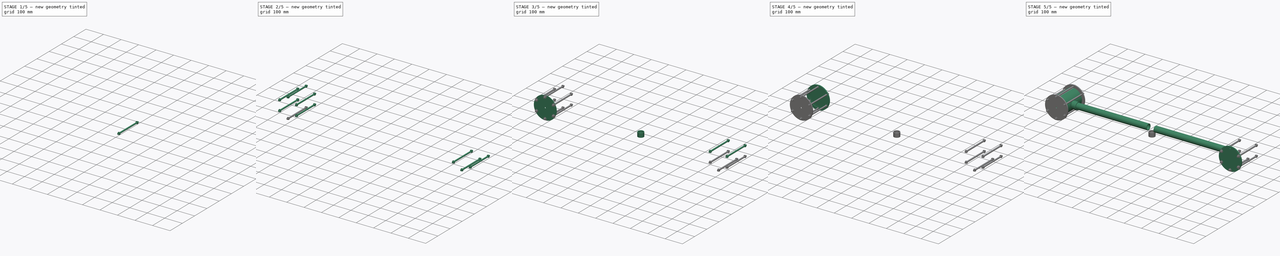
[diagram: build sequence overview — one tinted view per stage of 5, left to right]
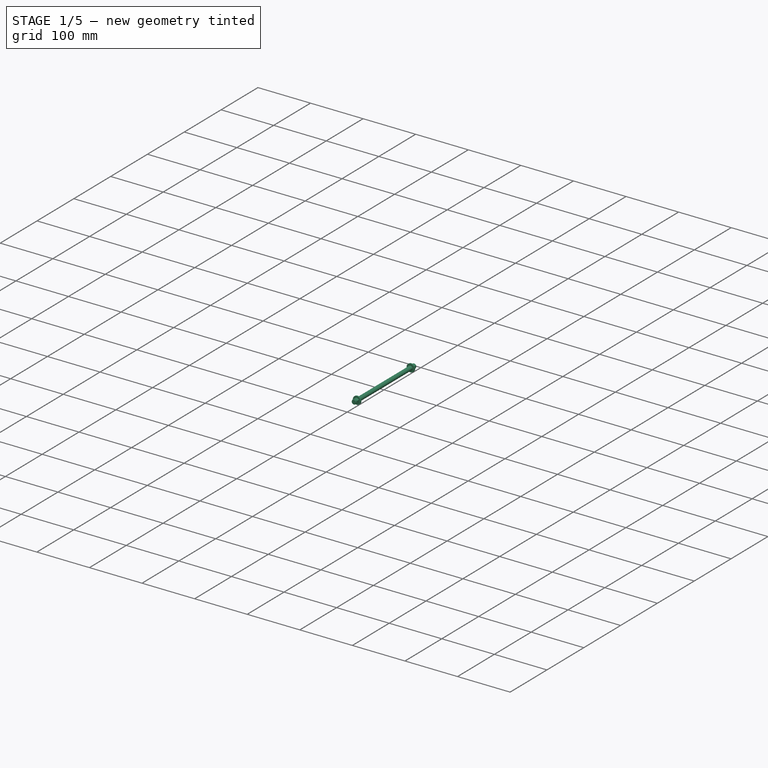
[diagram: stage 1 of 5 — iso view after this stage's code; geometry added in this stage tinted green]
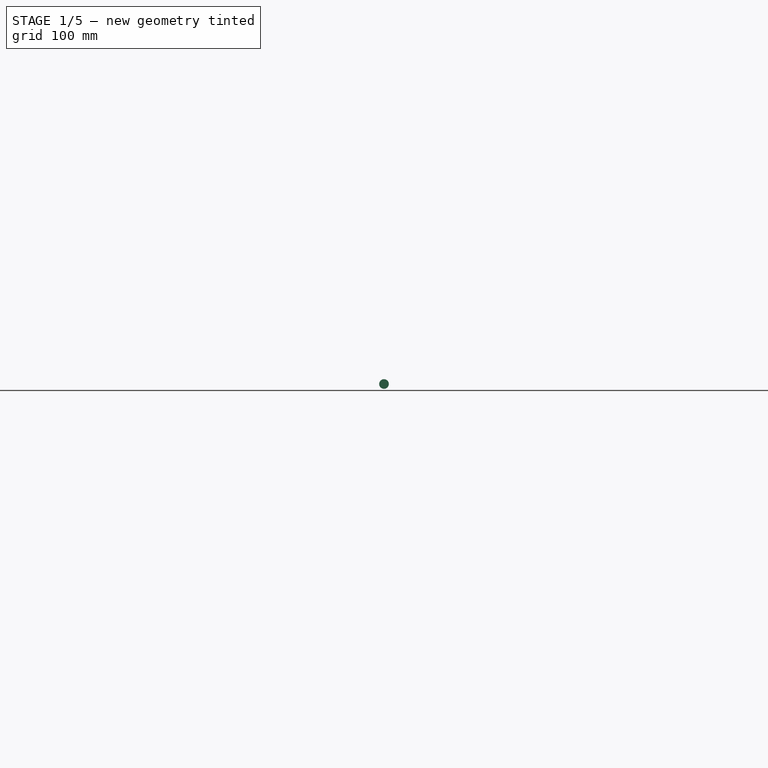
[diagram: stage 1 of 5 — front view after this stage's code; geometry added in this stage tinted green]
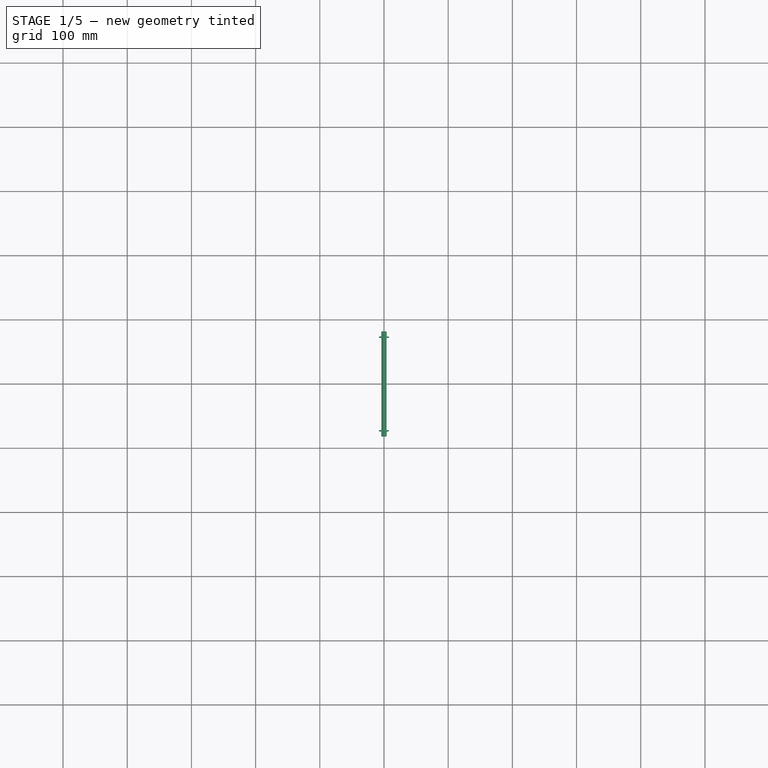
[diagram: stage 1 of 5 — top view after this stage's code; geometry added in this stage tinted green]
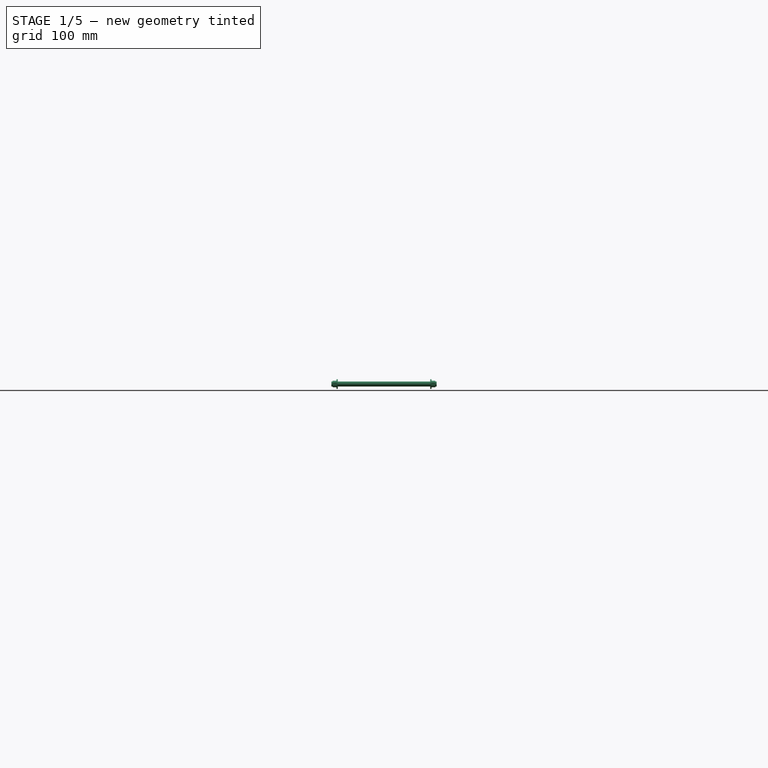
[diagram: stage 1 of 5 — right view after this stage's code; geometry added in this stage tinted green]
FCSTD DOCUMENT  (FreeCAD 0.15R4671 (Git))
Label: StereoEyes
License: All rights reserved
LicenseURL: http://en.wikipedia.org/wiki/All_rights_reserved
objects: Part::FeaturePython×22, Sketcher::SketchObject×18, PartDesign::Pad×11, PartDesign::Pocket×7, Part::Feature×4, App::FeaturePython×1
note: 80 computed .brp shape members not serialized (recipe doc carries the construction recipe); baked Part::Feature solids carry a one-line shape summary decoded from their .brp

FEATURE [Sketcher::SketchObject] Sketch013
  Placement = pos=(500,82,56) rot=(-1,0,0;4.71239rad)
  sketch-geometry (1):
    g0: Circle CenterX=0 CenterY=0 CenterZ=0 NormalX=0 NormalY=0 NormalZ=1 Radius=3.96875
  constraints (2):
    c: Coincident(g0,g-1)
    c: Radius(g0) = 3.96875
FEATURE [PartDesign::Pad] Pad009  label="thread rod 1"
  Length = 164
  Length2 = 100
  Placement = pos=(500,82,56) rot=(-1,0,0;4.71239rad)
  Sketch = -> Sketch013
  Type = 0
FEATURE [Sketcher::SketchObject] Sketch014
  Placement = pos=(500,82,56) rot=(-1,0,0;1.5708rad)
  Support = -> Pad009 [Face2]
  sketch-geometry (1):
    g0: Circle CenterX=0 CenterY=0 CenterZ=0 NormalX=0 NormalY=0 NormalZ=1 Radius=7.5
  constraints (2):
    c: Coincident(g0,g-1)
    c: Radius(g0) = 7.5
FEATURE [PartDesign::Pad] Pad010  label="thread rod 2"
  Length = 10
  Length2 = 100
  Placement = pos=(500,82,56) rot=(-1,0,0;4.71239rad)
  Reversed = true
  Sketch = -> Sketch014
  Type = 0
FEATURE [Sketcher::SketchObject] Sketch015
  ExternalGeometry = -> [Pad010]
  Placement = pos=(500,82,56) rot=(-1,0,0;1.5708rad)
  Support = -> Pad010 [Face5]
  sketch-geometry (8):
    g0: Circle CenterX=0 CenterY=0 CenterZ=0 NormalX=0 NormalY=0 NormalZ=1 Radius=7.5
    g1: LineSegment StartX=0 StartY=5 StartZ=0 EndX=-4.33013 EndY=2.5 EndZ=0
    g2: LineSegment StartX=-4.33013 StartY=2.5 StartZ=0 EndX=-4.33013 EndY=-2.5 EndZ=0
    g3: LineSegment StartX=-4.33013 StartY=-2.5 StartZ=0 EndX=0 EndY=-5 EndZ=0
    g4: LineSegment StartX=0 StartY=-5 StartZ=0 EndX=4.33013 EndY=-2.5 EndZ=0
    g5: LineSegment StartX=4.33013 StartY=-2.5 StartZ=0 EndX=4.33013 EndY=2.5 EndZ=0
    g6: LineSegment StartX=4.33013 StartY=2.5 StartZ=0 EndX=0 EndY=5 EndZ=0
    g7: Circle [constr] CenterX=0 CenterY=0 CenterZ=0 NormalX=0 NormalY=0 NormalZ=1 Radius=5
  constraints (19):
    c: Coincident(g0,g-1)
    c: Coincident(g1,g2)
    c: Coincident(g2,g3)
    c: Coincident(g3,g4)
    c: Coincident(g4,g5)
    c: Coincident(g5,g6)
    c: Coincident(g6,g1)
    c: Equal(g1, g2-g6) x5
    c: PointOnObject(g1,g7)
    c: PointOnObject(g2,g7)
    c: PointOnObject(g3,g7)
    c: PointOnObject(g4,g7)
    c: PointOnObject(g5,g7)
    c: PointOnObject(g6,g7)
    c: Coincident(g4,g-1)
    c: PointOnObject(g1,g-2)
    c: Coincident(g7,g-1)
    c: Radius(g7) = 5
    c: Equal(g0,g-3)
FEATURE [PartDesign::Pocket] Pocket003  label="thread rod 3"
  Length = 8
  Placement = pos=(500,82,56) rot=(-1,0,0;4.71239rad)
  Sketch = -> Sketch015
  Type = 0
FEATURE [Sketcher::SketchObject] Sketch016
  ExternalGeometry = -> [Pocket003]
  Placement = pos=(500,82,56) rot=(-1,0,0;1.5708rad)
  Support = -> Pocket003 [Face12]
  sketch-geometry (2):
    g0: Circle CenterX=0 CenterY=0 CenterZ=0 NormalX=0 NormalY=0 NormalZ=1 Radius=3.96875
    g1: Circle CenterX=0 CenterY=0 CenterZ=0 NormalX=0 NormalY=0 NormalZ=1 Radius=7.5
  constraints (1):
    c: Coincident(g0,g-1)
FEATURE [PartDesign::Pocket] Pocket004  label="thread rod 4"
  Length = 2
  Placement = pos=(500,82,56) rot=(-1,0,0;4.71239rad)
  Sketch = -> Sketch016
  Type = 0
FEATURE [Sketcher::SketchObject] Sketch017
  Placement = pos=(500,-82,56) rot=(1,0,0;1.5708rad)
  Support = -> Pocket004 [Face1]
  sketch-geometry (1):
    g0: Circle CenterX=0 CenterY=0 CenterZ=0 NormalX=0 NormalY=0 NormalZ=1 Radius=7.5
  constraints (2):
    c: Coincident(g0,g-1)
    c: Radius(g0) = 7.5
FEATURE [PartDesign::Pad] Pad011  label="thread rod 5"
  Length = 10
  Length2 = 100
  Placement = pos=(500,82,56) rot=(-1,0,0;4.71239rad)
  Reversed = true
  Sketch = -> Sketch017
  Type = 0
FEATURE [Sketcher::SketchObject] Sketch018
  ExternalGeometry = -> [Pad011]
  Placement = pos=(500,-82,56) rot=(1,0,0;1.5708rad)
  Support = -> Pad011 [Face14]
  sketch-geometry (8):
    g0: Circle CenterX=0 CenterY=0 CenterZ=0 NormalX=0 NormalY=0 NormalZ=1 Radius=7.5
    g1: LineSegment StartX=0 StartY=5 StartZ=0 EndX=-4.33013 EndY=2.5 EndZ=0
    g2: LineSegment StartX=-4.33013 StartY=2.5 StartZ=0 EndX=-4.33013 EndY=-2.5 EndZ=0
    g3: LineSegment StartX=-4.33013 StartY=-2.5 StartZ=0 EndX=0 EndY=-5 EndZ=0
    g4: LineSegment StartX=0 StartY=-5 StartZ=0 EndX=4.33013 EndY=-2.5 EndZ=0
    g5: LineSegment StartX=4.33013 StartY=-2.5 StartZ=0 EndX=4.33013 EndY=2.5 EndZ=0
    g6: LineSegment StartX=4.33013 StartY=2.5 StartZ=0 EndX=0 EndY=5 EndZ=0
    g7: Circle [constr] CenterX=0 CenterY=0 CenterZ=0 NormalX=0 NormalY=0 NormalZ=1 Radius=5
  constraints (19):
    c: Coincident(g0,g-1)
    c: Coincident(g1,g2)
    c: Coincident(g2,g3)
    c: Coincident(g3,g4)
    c: Coincident(g4,g5)
    c: Coincident(g5,g6)
    c: Coincident(g6,g1)
    c: Equal(g1, g2-g6) x5
    c: PointOnObject(g1,g7)
    c: PointOnObject(g2,g7)
    c: PointOnObject(g3,g7)
    c: PointOnObject(g4,g7)
    c: PointOnObject(g5,g7)
    c: PointOnObject(g6,g7)
    c: Coincident(g4,g-1)
    c: Coincident(g0,g7)
    c: PointOnObject(g1,g-2)
    c: Equal(g0,g-3)
    c: Radius(g7) = 5
FEATURE [PartDesign::Pocket] Pocket005  label="thread rod 6"
  Length = 8
  Placement = pos=(500,82,56) rot=(-1,0,0;4.71239rad)
  Sketch = -> Sketch018
  Type = 0
FEATURE [Sketcher::SketchObject] Sketch019
  ExternalGeometry = -> [Pocket005]
  Placement = pos=(500,-82,56) rot=(1,0,0;1.5708rad)
  Support = -> Pocket005 [Face24]
  sketch-geometry (2):
    g0: Circle CenterX=0 CenterY=0 CenterZ=0 NormalX=0 NormalY=0 NormalZ=1 Radius=7.5
    g1: Circle CenterX=0 CenterY=0 CenterZ=0 NormalX=0 NormalY=0 NormalZ=1 Radius=3.96875
  constraints (4):
    c: Coincident(g0,g1)
    c: Coincident(g0,g-4)
    c: Equal(g1,g-3)
    c: Equal(g0,g-4)
FEATURE [PartDesign::Pocket] Pocket006  label="TL thread rod 7 right 1"
  Length = 2
  Placement = pos=(500,82,56) rot=(-1,0,0;4.71239rad)
  Sketch = -> Sketch019
  Type = 0
FEATURE [Part::FeaturePython] Clone021  label="TL thread rod 7 left 6"  # Draft clone (typed FeaturePython)
  Objects = -> [Pocket006]
  Placement = pos=(-500,82,-56) rot=(1,0,0;1.5708rad)
  Scale = (1,1,1)
FEATURE [App::FeaturePython] Dimension  # Draft dimension (typed FeaturePython)
  Dimline = (358,0,152)
  Direction = (0,0,0)
  Distance = 992.062
  End = (496.031,0,56)
  Normal = (0,-1,0)
  Start = (-496.031,0,56)
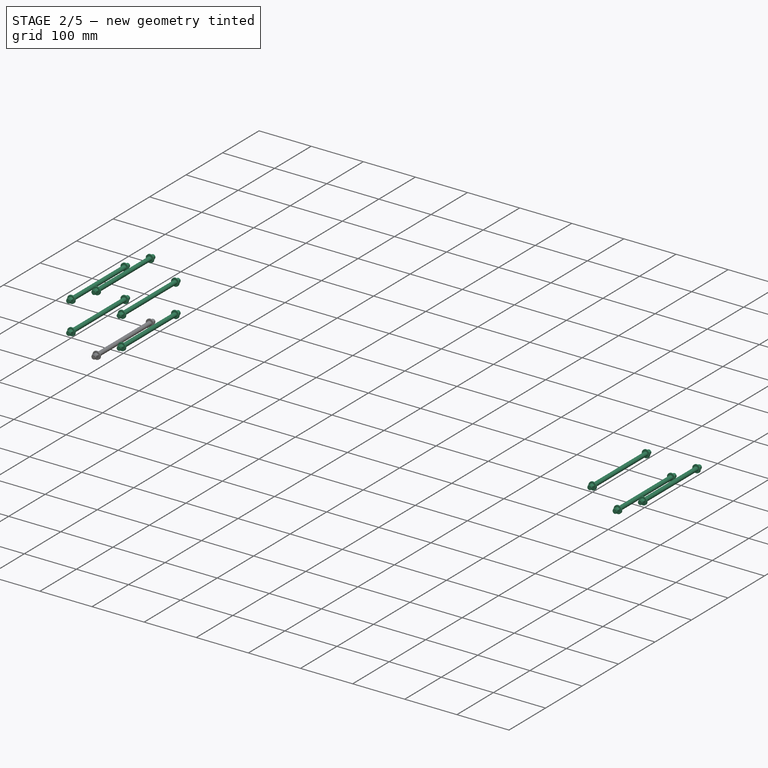
[diagram: stage 2 of 5 — iso view after this stage's code; geometry added in this stage tinted green]
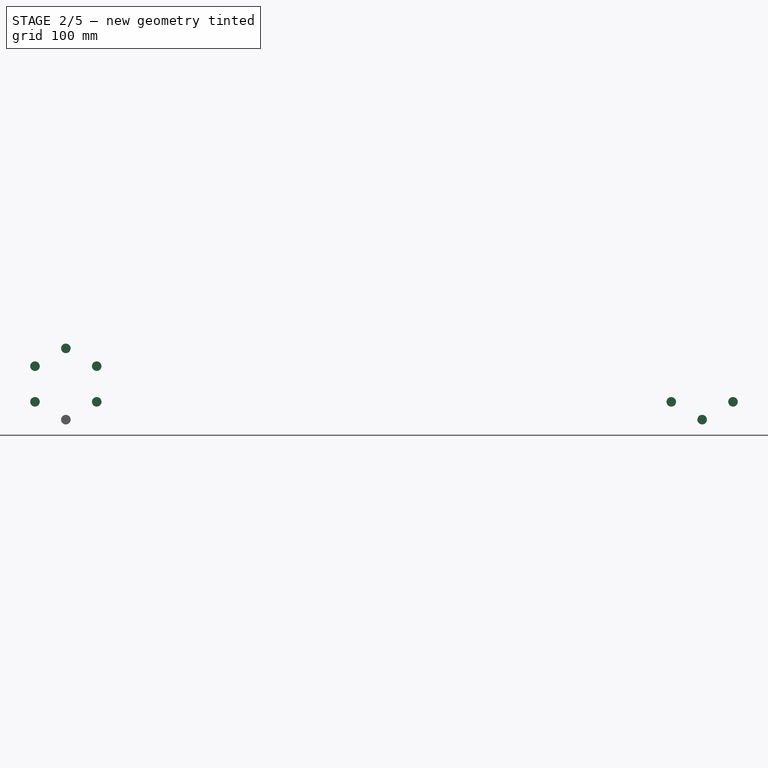
[diagram: stage 2 of 5 — front view after this stage's code; geometry added in this stage tinted green]
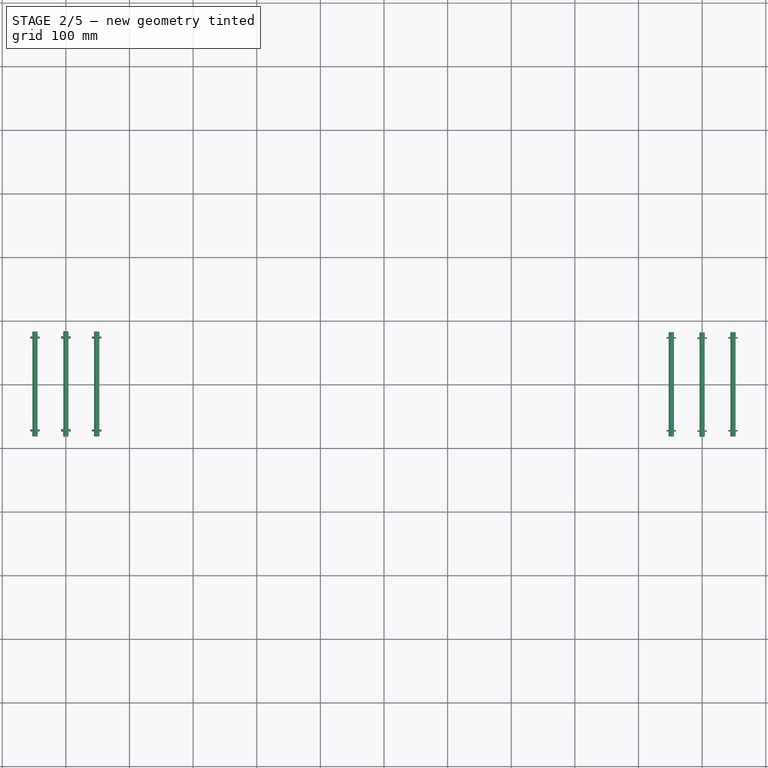
[diagram: stage 2 of 5 — top view after this stage's code; geometry added in this stage tinted green]
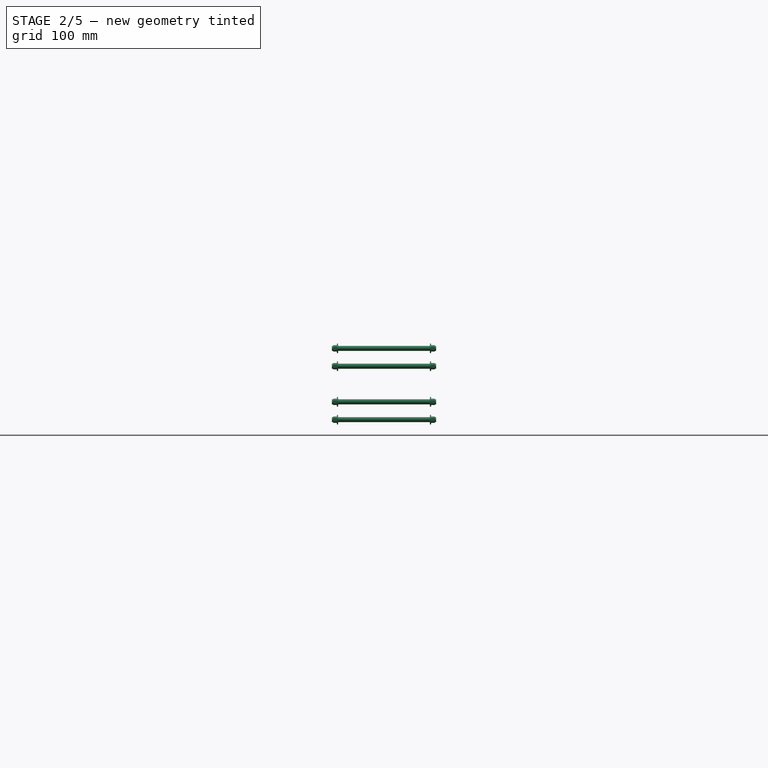
[diagram: stage 2 of 5 — right view after this stage's code; geometry added in this stage tinted green]
FEATURE [Part::FeaturePython] Clone013  label="TL thread rod 7 right 4"  # Draft clone (typed FeaturePython)
  Objects = -> [Pocket006]
  Placement = pos=(548.5,82,-28) rot=(1,0,0;1.5708rad)
  Scale = (1,1,1)
FEATURE [Part::FeaturePython] Clone014  label="TL thread rod 7 right 5"  # Draft clone (typed FeaturePython)
  Objects = -> [Pocket006]
  Placement = pos=(451.5,82,-28) rot=(1,0,0;1.5708rad)
  Scale = (1,1,1)
FEATURE [Part::FeaturePython] Clone015  label="TL thread rod 7 right 6"  # Draft clone (typed FeaturePython)
  Objects = -> [Pocket006]
  Placement = pos=(500,82,-56) rot=(1,0,0;1.5708rad)
  Scale = (1,1,1)
FEATURE [Part::FeaturePython] Clone016  label="TL thread rod 7 left 1"  # Draft clone (typed FeaturePython)
  Objects = -> [Pocket006]
  Placement = pos=(-500,82,56) rot=(1,0,0;1.5708rad)
  Scale = (1,1,1)
FEATURE [Part::FeaturePython] Clone017  label="TL thread rod 7 left 2"  # Draft clone (typed FeaturePython)
  Objects = -> [Pocket006]
  Placement = pos=(-548.5,82,28) rot=(1,0,0;1.5708rad)
  Scale = (1,1,1)
FEATURE [Part::FeaturePython] Clone018  label="TL thread rod 7 left 3"  # Draft clone (typed FeaturePython)
  Objects = -> [Pocket006]
  Placement = pos=(-451.5,82,28) rot=(1,0,0;1.5708rad)
  Scale = (1,1,1)
FEATURE [Part::FeaturePython] Clone019  label="TL thread rod 7 left 4"  # Draft clone (typed FeaturePython)
  Objects = -> [Pocket006]
  Placement = pos=(-548.5,82,-28) rot=(1,0,0;1.5708rad)
  Scale = (1,1,1)
FEATURE [Part::FeaturePython] Clone020  label="TL thread rod 7 left 5"  # Draft clone (typed FeaturePython)
  Objects = -> [Pocket006]
  Placement = pos=(-451.5,82,-28) rot=(1,0,0;1.5708rad)
  Scale = (1,1,1)
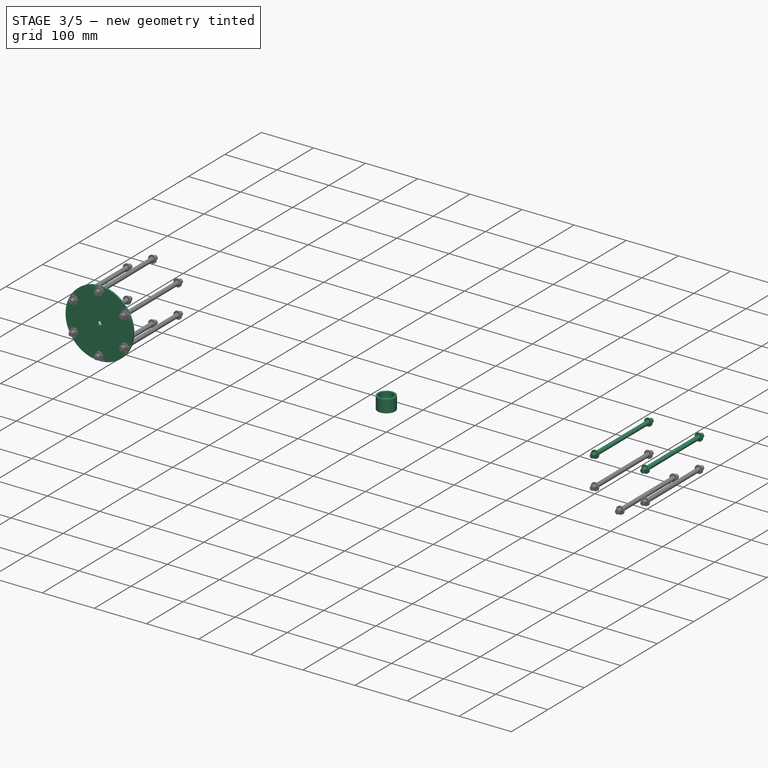
[diagram: stage 3 of 5 — iso view after this stage's code; geometry added in this stage tinted green]
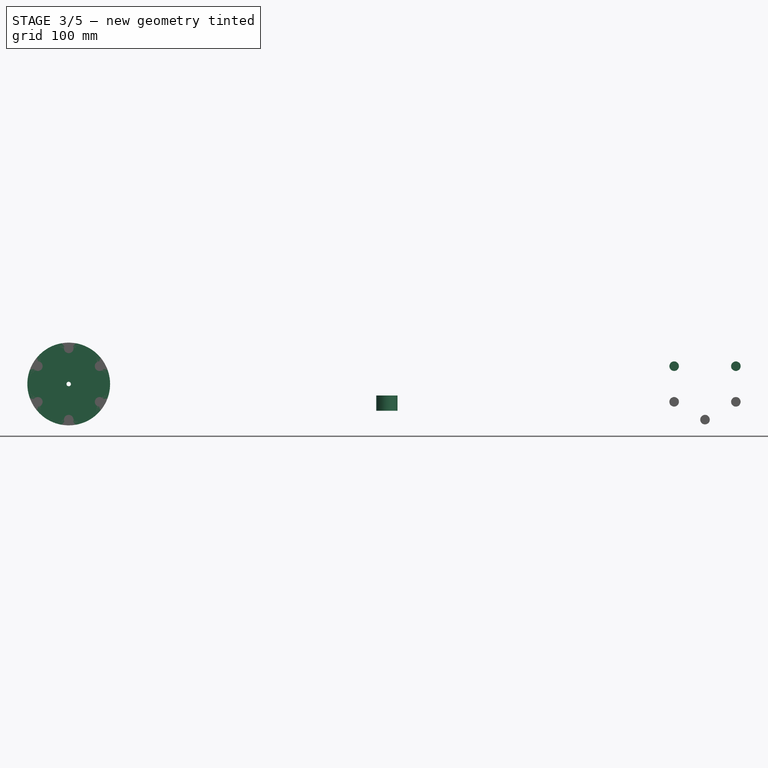
[diagram: stage 3 of 5 — front view after this stage's code; geometry added in this stage tinted green]
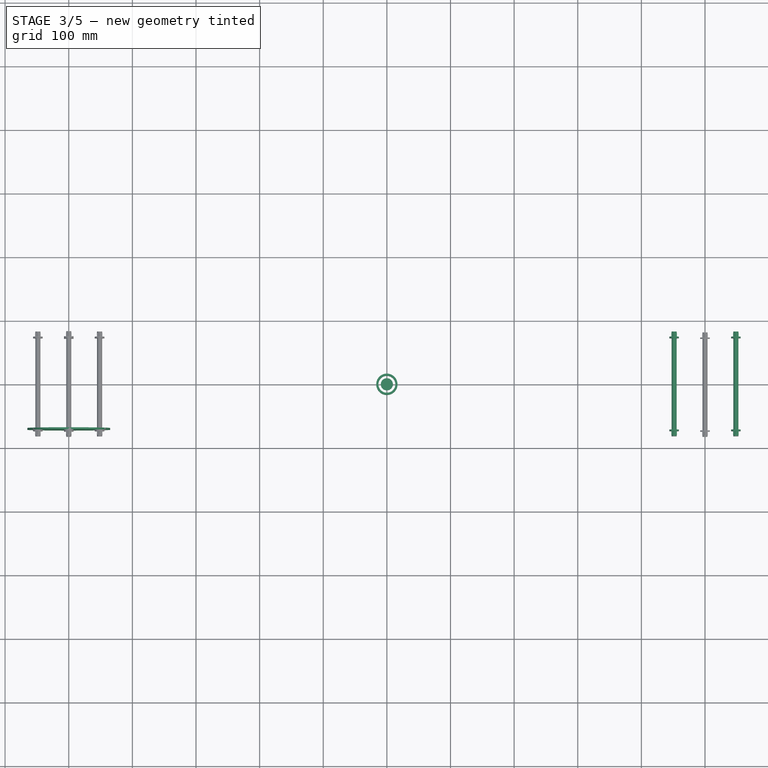
[diagram: stage 3 of 5 — top view after this stage's code; geometry added in this stage tinted green]
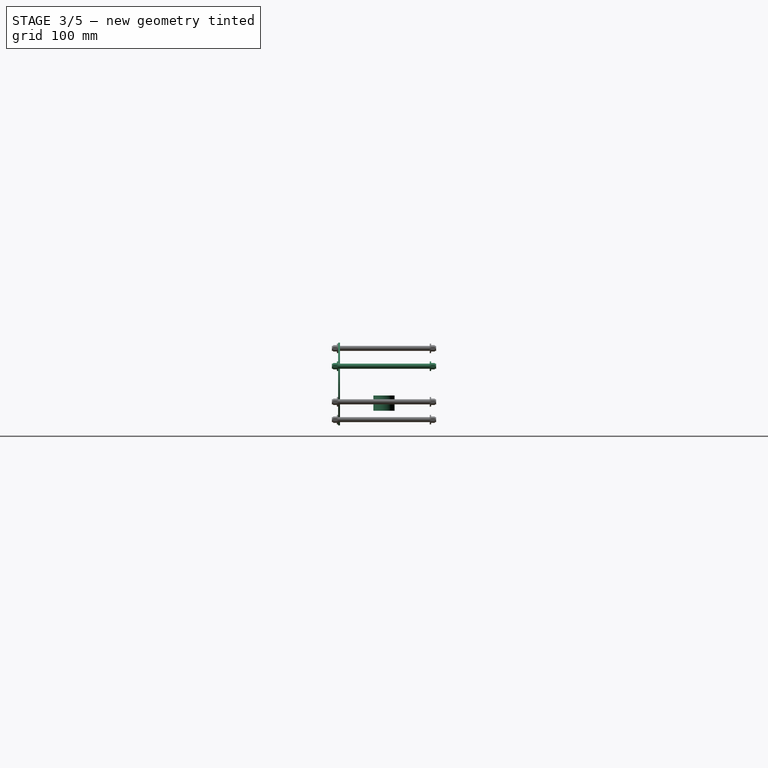
[diagram: stage 3 of 5 — right view after this stage's code; geometry added in this stage tinted green]
FEATURE [Part::Feature] Part__Feature002  label="TL 1in PVB T joint center"
  Placement = pos=(0,0,0) rot=(-1,0,0;1.5708rad)
  shape: bbox 84.99 x 40.67 x 62.83 mm, 22 faces (baked)
FEATURE [Sketcher::SketchObject] Sketch005
  Placement = pos=(500,72.072,0) rot=(1,0,0;1.5708rad)
  sketch-geometry (1):
    g0: Circle CenterX=0 CenterY=0 CenterZ=0 NormalX=0 NormalY=0 NormalZ=1 Radius=65
  constraints (2):
    c: Coincident(g0,g-1)
    c: Radius(g0) = 65
FEATURE [PartDesign::Pad] Pad004  label="acrylic window"
  Length = 3
  Length2 = 100
  Placement = pos=(500,72.072,0) rot=(1,0,0;1.5708rad)
  Sketch = -> Sketch005
  Type = 0
FEATURE [Sketcher::SketchObject] Sketch006
  Placement = pos=(500,69.072,0) rot=(1,0,0;1.5708rad)
  Support = -> Pad004 [Face3]
  sketch-geometry (13):
    g0: LineSegment [constr] StartX=-48.4974 StartY=28 StartZ=0 EndX=-48.4974 EndY=-28 EndZ=0
    g1: LineSegment [constr] StartX=-48.4974 StartY=-28 StartZ=0 EndX=0 EndY=-56 EndZ=0
    g2: LineSegment [constr] StartX=0 StartY=-56 StartZ=0 EndX=48.4974 EndY=-28 EndZ=0
    g3: LineSegment [constr] StartX=48.4974 StartY=-28 StartZ=0 EndX=48.4974 EndY=28 EndZ=0
    g4: LineSegment [constr] StartX=48.4974 StartY=28 StartZ=0 EndX=0 EndY=56 EndZ=0
    g5: LineSegment [constr] StartX=0 StartY=56 StartZ=0 EndX=-48.4974 EndY=28 EndZ=0
    g6: Circle [constr] CenterX=0 CenterY=0 CenterZ=0 NormalX=0 NormalY=0 NormalZ=1 Radius=56
    g7: Circle CenterX=48.4974 CenterY=28 CenterZ=0 NormalX=0 NormalY=0 NormalZ=1 Radius=4
    g8: Circle CenterX=48.4974 CenterY=-28 CenterZ=0 NormalX=0 NormalY=0 NormalZ=1 Radius=4
    g9: Circle CenterX=0 CenterY=-56 CenterZ=0 NormalX=0 NormalY=0 NormalZ=1 Radius=4
    g10: Circle CenterX=-48.4974 CenterY=-28 CenterZ=0 NormalX=0 NormalY=0 NormalZ=1 Radius=4
    g11: Circle CenterX=-48.4974 CenterY=28 CenterZ=0 NormalX=0 NormalY=0 NormalZ=1 Radius=4
    g12: Circle CenterX=0 CenterY=56 CenterZ=0 NormalX=0 NormalY=0 NormalZ=1 Radius=4
  constraints (29):
    c: Coincident(g0,g1)
    c: Coincident(g1,g2)
    c: Coincident(g2,g3)
    c: Coincident(g3,g4)
    c: Coincident(g4,g5)
    c: Coincident(g5,g0)
    c: Equal(g0, g1-g5) x5
    c: PointOnObject(g0,g6)
    c: PointOnObject(g1,g6)
    c: PointOnObject(g2,g6)
    c: PointOnObject(g3,g6)
    c: PointOnObject(g4,g6)
    c: PointOnObject(g5,g6)
    c: Coincident(g3,g-1)
    c: PointOnObject(g4,g-2)
    c: Coincident(g6,g-1)
    c: Coincident(g7,g3)
    c: Coincident(g8,g2)
    c: Coincident(g9,g1)
    c: Coincident(g10,g0)
    c: Coincident(g11,g0)
    c: Coincident(g12,g4)
    c: Equal(g12,g11)
    c: Equal(g11,g7)
    c: Equal(g7,g8)
    c: Equal(g8,g9)
    c: Equal(g9,g10)
    c: Radius(g12) = 4
    c: Radius(g6) = 56
FEATURE [PartDesign::Pocket] Pocket  label="TL acrylic window holes right rear"
  Length = 5
  Placement = pos=(500,72.072,0) rot=(1,0,0;1.5708rad)
  Sketch = -> Sketch006
  Type = 1
FEATURE [Part::FeaturePython] Clone008  label="acrylic window holes left front"  # Draft clone (typed FeaturePython)
  Objects = -> [Pocket]
  Placement = pos=(-500,-69.072,0) rot=(1,0,0;1.5708rad)
  Scale = (1,1,1)
FEATURE [Sketcher::SketchObject] Sketch010
  Placement = pos=(0,0,-18) rot=(0,0,1;0rad)
  sketch-geometry (2):
    g0: Circle CenterX=0 CenterY=0 CenterZ=0 NormalX=0 NormalY=0 NormalZ=1 Radius=16.7005
    g1: Circle CenterX=0 CenterY=0 CenterZ=0 NormalX=0 NormalY=0 NormalZ=1 Radius=13.3223
  constraints (4):
    c: Coincident(g0,g-1)
    c: Coincident(g1,g-1)
    c: Radius(g0) = 16.7005
    c: Radius(g1) = 13.3223
FEATURE [PartDesign::Pad] Pad007  label="TL 1in PVC center coupler"
  Length = 24
  Length2 = 100
  Placement = pos=(0,0,-18) rot=(0,0,1;0rad)
  Reversed = true
  Sketch = -> Sketch010
  Type = 0
FEATURE [Sketcher::SketchObject] Sketch011
  Placement = pos=(-500,-72.072,0) rot=(1,0,0;1.5708rad)
  Support = -> Clone008 [Face3]
  sketch-geometry (1):
    g0: Circle CenterX=0 CenterY=0 CenterZ=0 NormalX=0 NormalY=0 NormalZ=1 Radius=3.5
  constraints (2):
    c: Coincident(g0,g-1)
    c: Radius(g0) = 3.5
FEATURE [PartDesign::Pocket] Pocket002  label="TL acrylic window holes panel mount left front"
  Length = 5
  Placement = pos=(-500,-69.072,0) rot=(1,0,0;1.5708rad)
  Sketch = -> Sketch011
  Type = 1
FEATURE [Part::Feature] Part__Feature  label="TL bulkhead electrical connector left"
  Placement = pos=(-500,-62.473,0) rot=(1,0,0;1.5708rad)
  shape: bbox 20 x 23 x 18 mm, 53 faces (baked)
FEATURE [Sketcher::SketchObject] Sketch012
  Placement = pos=(0,0,-30) rot=(0,0,1;0rad)
  sketch-geometry (1):
    g0: Circle CenterX=0 CenterY=0 CenterZ=0 NormalX=0 NormalY=0 NormalZ=1 Radius=9.55
  constraints (2):
    c: Coincident(g0,g-1)
    c: Radius(g0) = 9.55
FEATURE [PartDesign::Pad] Pad008  label="TL waterproof plug center"
  Length = 3
  Length2 = 100
  Placement = pos=(0,0,-30) rot=(0,0,1;0rad)
  Sketch = -> Sketch012
  Type = 0
FEATURE [Part::FeaturePython] Clone011  label="TL thread rod 7 right 2"  # Draft clone (typed FeaturePython)
  Objects = -> [Pocket006]
  Placement = pos=(548.5,82,28) rot=(1,0,0;1.5708rad)
  Scale = (1,1,1)
FEATURE [Part::FeaturePython] Clone012  label="TL thread rod 7 right 3"  # Draft clone (typed FeaturePython)
  Objects = -> [Pocket006]
  Placement = pos=(451.5,82,28) rot=(1,0,0;1.5708rad)
  Scale = (1,1,1)
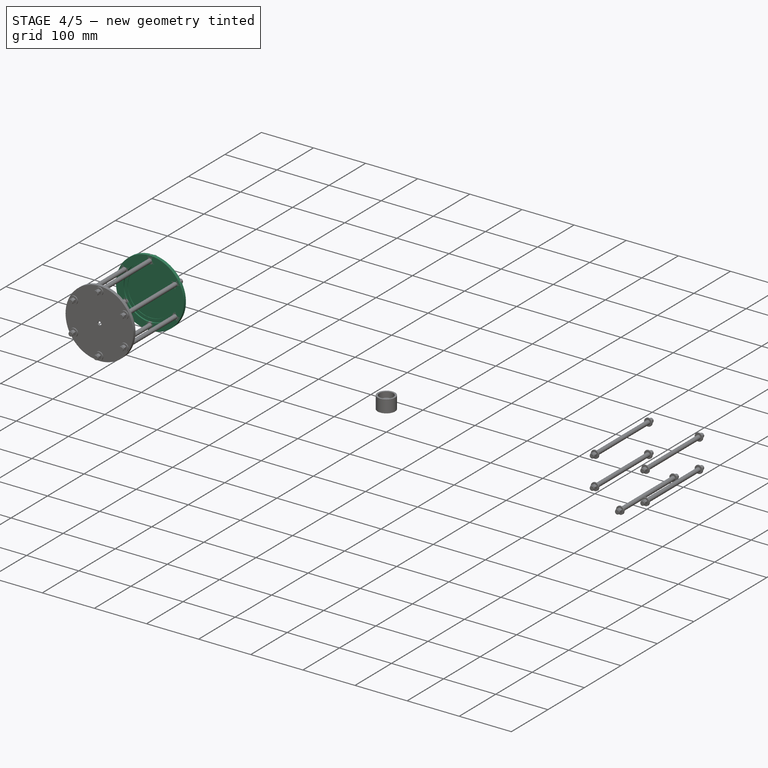
[diagram: stage 4 of 5 — iso view after this stage's code; geometry added in this stage tinted green]
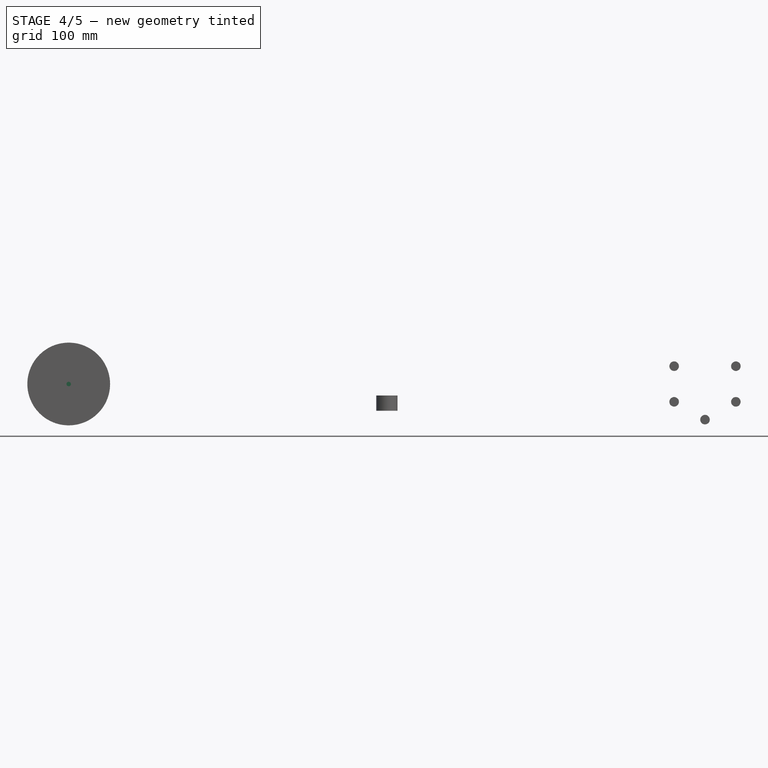
[diagram: stage 4 of 5 — front view after this stage's code; geometry added in this stage tinted green]
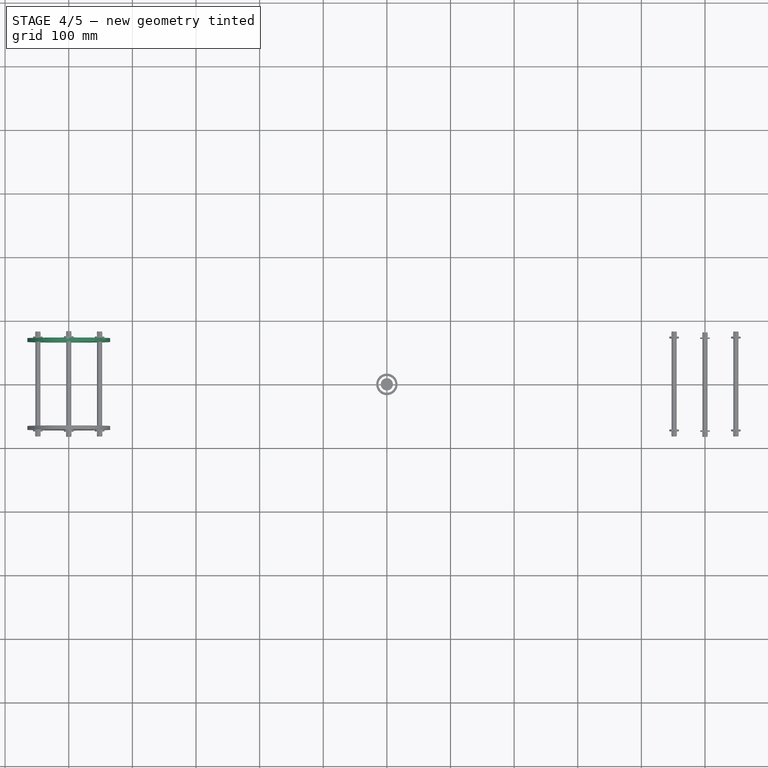
[diagram: stage 4 of 5 — top view after this stage's code; geometry added in this stage tinted green]
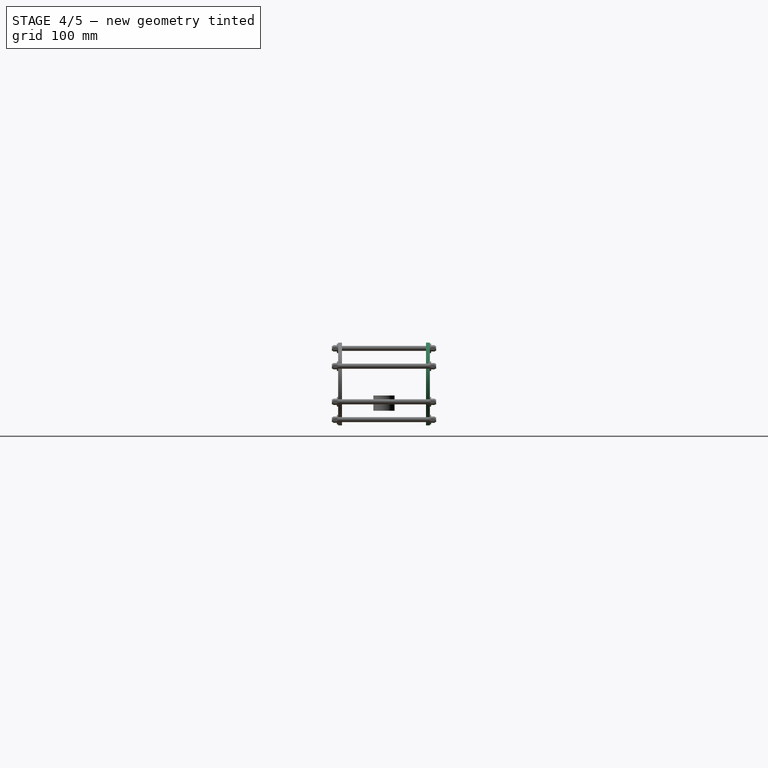
[diagram: stage 4 of 5 — right view after this stage's code; geometry added in this stage tinted green]
FEATURE [Sketcher::SketchObject] Sketch007
  Placement = pos=(500,69.072,0) rot=(1,0,0;1.5708rad)
  sketch-geometry (2):
    g0: Circle CenterX=0 CenterY=0 CenterZ=0 NormalX=0 NormalY=0 NormalZ=1 Radius=65
    g1: Circle CenterX=0 CenterY=0 CenterZ=0 NormalX=0 NormalY=0 NormalZ=1 Radius=50.5
  constraints (4):
    c: Coincident(g0,g-1)
    c: Coincident(g1,g-1)
    c: Radius(g0) = 65
    c: Radius(g1) = 50.5
FEATURE [PartDesign::Pad] Pad005  label="acrylic window retainer"
  Length = 3
  Length2 = 100
  Placement = pos=(500,69.072,0) rot=(1,0,0;1.5708rad)
  Sketch = -> Sketch007
  Type = 0
FEATURE [Sketcher::SketchObject] Sketch008
  Placement = pos=(500,66.072,0) rot=(1,0,0;1.5708rad)
  Support = -> Pad005 [Face4]
  sketch-geometry (13):
    g0: LineSegment [constr] StartX=-48.4974 StartY=28 StartZ=0 EndX=-48.4974 EndY=-28 EndZ=0
    g1: LineSegment [constr] StartX=-48.4974 StartY=-28 StartZ=0 EndX=0 EndY=-56 EndZ=0
    g2: LineSegment [constr] StartX=0 StartY=-56 StartZ=0 EndX=48.4974 EndY=-28 EndZ=0
    g3: LineSegment [constr] StartX=48.4974 StartY=-28 StartZ=0 EndX=48.4974 EndY=28 EndZ=0
    g4: LineSegment [constr] StartX=48.4974 StartY=28 StartZ=0 EndX=0 EndY=56 EndZ=0
    g5: LineSegment [constr] StartX=0 StartY=56 StartZ=0 EndX=-48.4974 EndY=28 EndZ=0
    g6: Circle [constr] CenterX=0 CenterY=0 CenterZ=0 NormalX=0 NormalY=0 NormalZ=1 Radius=56
    g7: Circle CenterX=0 CenterY=56 CenterZ=0 NormalX=0 NormalY=0 NormalZ=1 Radius=4
    g8: Circle CenterX=48.4974 CenterY=28 CenterZ=0 NormalX=0 NormalY=0 NormalZ=1 Radius=4
    g9: Circle CenterX=-48.4974 CenterY=28 CenterZ=0 NormalX=0 NormalY=0 NormalZ=1 Radius=4
    g10: Circle CenterX=-48.4974 CenterY=-28 CenterZ=0 NormalX=0 NormalY=0 NormalZ=1 Radius=4
    g11: Circle CenterX=0 CenterY=-56 CenterZ=0 NormalX=0 NormalY=0 NormalZ=1 Radius=4
    g12: Circle CenterX=48.4974 CenterY=-28 CenterZ=0 NormalX=0 NormalY=0 NormalZ=1 Radius=4
  constraints (28):
    c: Coincident(g0,g1)
    c: Coincident(g1,g2)
    c: Coincident(g2,g3)
    c: Coincident(g3,g4)
    c: Coincident(g4,g5)
    c: Coincident(g5,g0)
    c: Equal(g0, g1-g5) x5
    c: PointOnObject(g0,g6)
    c: PointOnObject(g1,g6)
    c: PointOnObject(g2,g6)
    c: PointOnObject(g3,g6)
    c: PointOnObject(g4,g6)
    c: PointOnObject(g5,g6)
    c: Coincident(g6,g-1)
    c: PointOnObject(g4,g-2)
    c: Coincident(g7,g4)
    c: Coincident(g8,g3)
    c: Coincident(g10,g0)
    c: Coincident(g11,g1)
    c: Coincident(g12,g2)
    c: Equal(g12,g8)
    c: Equal(g8,g7)
    c: Equal(g7,g9)
    c: Equal(g9,g10)
    c: Equal(g10,g11)
    c: Radius(g7) = 4
    c: Radius(g6) = 56
    c: Coincident(g9,g0)
FEATURE [PartDesign::Pocket] Pocket001  label="TL acyrlic window retainer holes right rear"
  Length = 5
  Placement = pos=(500,69.072,0) rot=(1,0,0;1.5708rad)
  Sketch = -> Sketch008
  Type = 1
FEATURE [Sketcher::SketchObject] Sketch009
  Placement = pos=(500,69.072,0) rot=(1,0,0;1.5708rad)
  sketch-geometry (2):
    g0: Circle CenterX=0 CenterY=0 CenterZ=0 NormalX=0 NormalY=0 NormalZ=1 Radius=50
    g1: Circle CenterX=0 CenterY=0 CenterZ=0 NormalX=0 NormalY=0 NormalZ=1 Radius=44
  constraints (4):
    c: Coincident(g0,g-1)
    c: Coincident(g1,g-1)
    c: Radius(g0) = 50
    c: Radius(g1) = 44
FEATURE [PartDesign::Pad] Pad006  label="TL rubber sealing gasket right rear"
  Length = 1
  Length2 = 100
  Placement = pos=(500,69.072,0) rot=(1,0,0;1.5708rad)
  Sketch = -> Sketch009
  Type = 0
FEATURE [Part::FeaturePython] Clone005  label="TL acrylic window holes left rear"  # Draft clone (typed FeaturePython)
  Objects = -> [Pocket]
  Placement = pos=(-500,72.072,0) rot=(1,0,0;1.5708rad)
  Scale = (1,1,1)
FEATURE [Part::FeaturePython] Clone006  label="TL acyrlic window retainer holes left rear"  # Draft clone (typed FeaturePython)
  Objects = -> [Pocket001]
  Placement = pos=(-500,69.072,0) rot=(1,0,0;1.5708rad)
  Scale = (1,1,1)
FEATURE [Part::FeaturePython] Clone007  label="TL rubber sealing gasket left rear"  # Draft clone (typed FeaturePython)
  Objects = -> [Pad006]
  Placement = pos=(-500,69.072,0) rot=(1,0,0;1.5708rad)
  Scale = (1,1,1)
FEATURE [Part::FeaturePython] Clone009  label="TL acyrlic window retainer holes left front"  # Draft clone (typed FeaturePython)
  Objects = -> [Pocket001]
  Placement = pos=(-500,-66.072,0) rot=(1,0,0;1.5708rad)
  Scale = (1,1,1)
FEATURE [Part::FeaturePython] Clone010  label="TL rubber sealing gasket left front"  # Draft clone (typed FeaturePython)
  Objects = -> [Pad006]
  Placement = pos=(-500,-68.072,0) rot=(1,0,0;1.5708rad)
  Scale = (1,1,1)
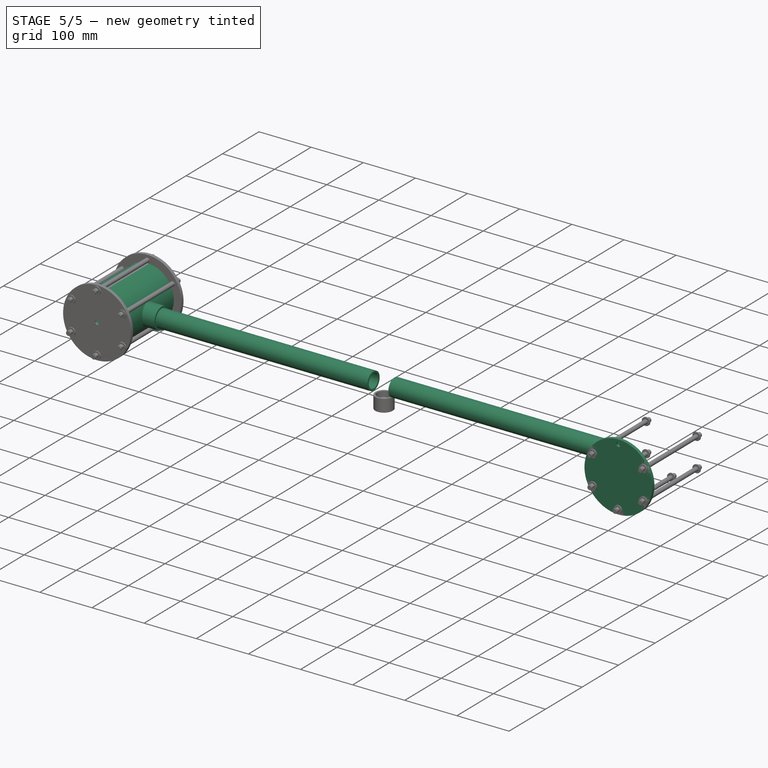
[diagram: stage 5 of 5 — iso view after this stage's code; geometry added in this stage tinted green]
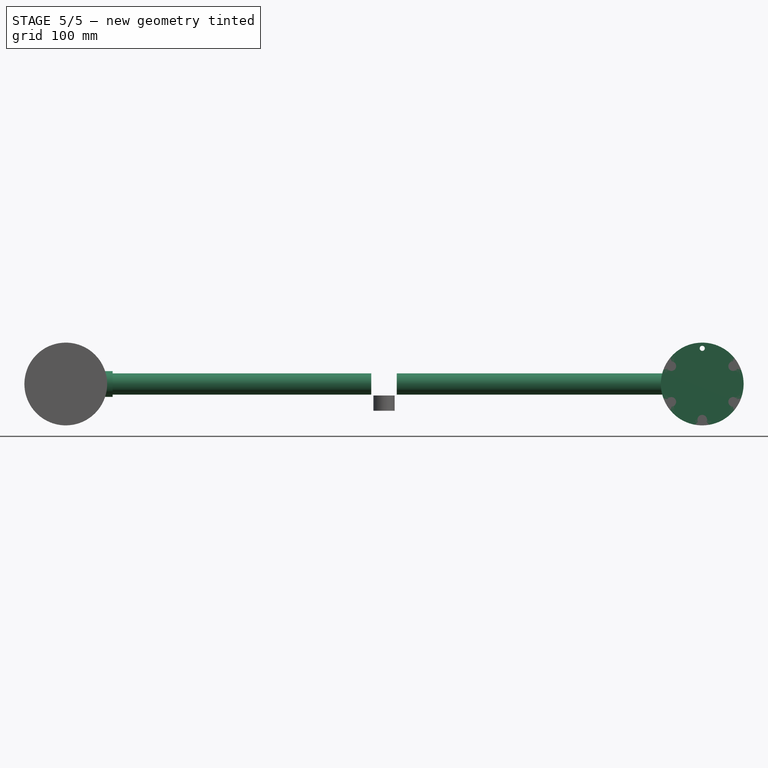
[diagram: stage 5 of 5 — front view after this stage's code; geometry added in this stage tinted green]
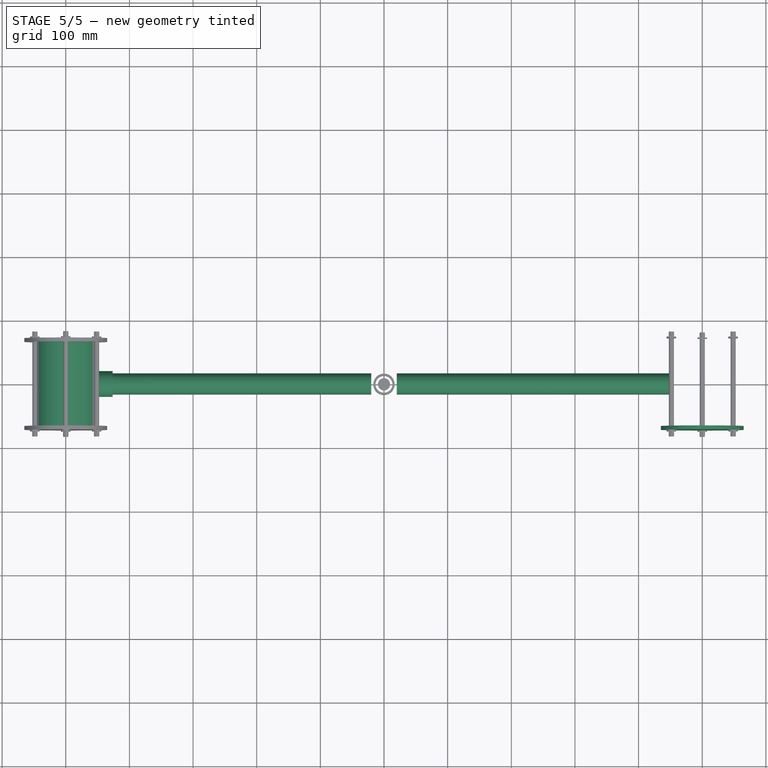
[diagram: stage 5 of 5 — top view after this stage's code; geometry added in this stage tinted green]
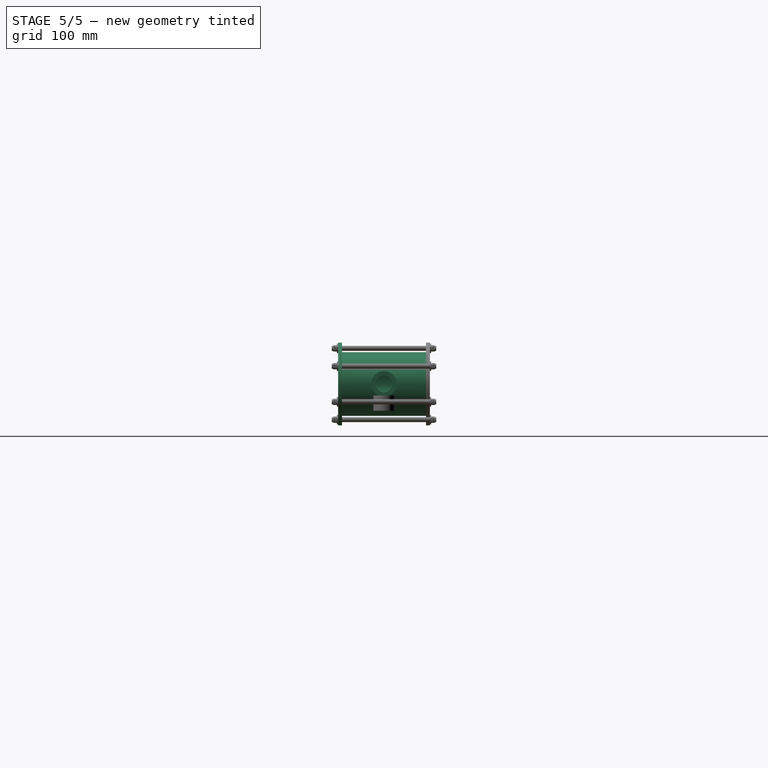
[diagram: stage 5 of 5 — right view after this stage's code; geometry added in this stage tinted green]
FEATURE [Part::Feature] Part__Feature001  label="TL 3in/1in T joint right"
  Placement = pos=(500,0,0) rot=(0,0,1;1.5708rad)
  shape: bbox 123.7 x 136.1 x 100.1 mm, 20 faces (baked)
FEATURE [Sketcher::SketchObject] Sketch
  Placement = pos=(20,0,0) rot=(0.57735,0.57735,0.57735;2.0944rad)
  sketch-geometry (2):
    g0: Circle CenterX=0 CenterY=0 CenterZ=0 NormalX=0 NormalY=0 NormalZ=1 Radius=16.7005
    g1: Circle CenterX=0 CenterY=0 CenterZ=0 NormalX=0 NormalY=0 NormalZ=1 Radius=13.3223
  constraints (4):
    c: Coincident(g0,g-1)
    c: Coincident(g1,g-1)
    c: Radius(g0) = 16.7005
    c: Radius(g1) = 13.3223
FEATURE [PartDesign::Pad] Pad  label="TL 1in PCV right"
  Length = 430
  Length2 = 100
  Placement = pos=(20,0,0) rot=(0.57735,0.57735,0.57735;2.0944rad)
  Sketch = -> Sketch
  Type = 0
FEATURE [Sketcher::SketchObject] Sketch002  label="Sketch001"
  Placement = pos=(-20,0,0) rot=(0.57735,0.57735,0.57735;2.0944rad)
  sketch-geometry (2):
    g0: Circle CenterX=0 CenterY=0 CenterZ=0 NormalX=0 NormalY=0 NormalZ=1 Radius=16.7005
    g1: Circle CenterX=0 CenterY=0 CenterZ=0 NormalX=0 NormalY=0 NormalZ=1 Radius=13.3223
  constraints (4):
    c: Coincident(g0,g-1)
    c: Coincident(g1,g-1)
    c: Radius(g0) = 16.7005
    c: Radius(g1) = 13.3223
FEATURE [PartDesign::Pad] Pad001  label="TL 1in PCV left"
  Length = 430
  Length2 = 100
  Placement = pos=(-20,0,0) rot=(0.57735,0.57735,0.57735;2.0944rad)
  Reversed = true
  Sketch = -> Sketch002
  Type = 0
FEATURE [Sketcher::SketchObject] Sketch004
  Placement = pos=(500,0,-30) rot=(0,0,1;0rad)
  sketch-geometry (6):
    g0: LineSegment StartX=25 StartY=20 StartZ=0 EndX=-25 EndY=20 EndZ=0
    g1: LineSegment StartX=-25 StartY=20 StartZ=0 EndX=-25 EndY=-20 EndZ=0
    g2: LineSegment StartX=25 StartY=-20 StartZ=0 EndX=25 EndY=20 EndZ=0
    g3: LineSegment [constr] StartX=0 StartY=20 StartZ=0 EndX=0 EndY=-20 EndZ=0
    g4: LineSegment StartX=-25 StartY=-20 StartZ=0 EndX=0 EndY=-20 EndZ=0
    g5: LineSegment StartX=0 StartY=-20 StartZ=0 EndX=25 EndY=-20 EndZ=0
  constraints (18):
    c: Coincident(g0,g1)
    c: Coincident(g2,g0)
    c: Horizontal(g0)
    c: Vertical(g1)
    c: Vertical(g2)
    c: DistanceX(g0) = -50
    c: DistanceY(g1) = -40
    c: PointOnObject(g3,g0)
    c: Vertical(g3)
    c: Coincident(g1,g4)
    c: Horizontal(g4)
    c: Coincident(g4,g5)
    c: Coincident(g5,g2)
    c: Horizontal(g5)
    c: Coincident(g4,g3)
    c: Equal(g4,g5)
    c: Tangent(g3,g-2) = 1.5708
    c: Symmetric(g1,g0,g-1)
FEATURE [PartDesign::Pad] Pad003  label="TL webcam stand right"
  Length = 3
  Length2 = 100
  Placement = pos=(500,0,-30) rot=(0,0,1;0rad)
  Sketch = -> Sketch004
  Type = 0
FEATURE [Part::FeaturePython] Clone  label="TL webcam stand left"  # Draft clone (typed FeaturePython)
  Objects = -> [Pad003]
  Placement = pos=(-500,0,-30) rot=(0,0,1;0rad)
  Scale = (1,1,1)
FEATURE [Part::Feature] Part__Feature003  label="TL 1in pipe connector center"
  Placement = pos=(0,0,-46) rot=(0,1,0;1.5708rad)
  shape: bbox 33.4 x 33.4 x 55.56 mm, 12 faces (baked)
FEATURE [Part::FeaturePython] Clone001  label="TL 3in/1in T joint left"  # Draft clone (typed FeaturePython)
  Objects = -> [Part__Feature001]
  Placement = pos=(-500,0,0) rot=(0,0,-1;1.5708rad)
  Scale = (1,1,1)
FEATURE [Part::FeaturePython] Clone002  label="TL acrylic window holes right front"  # Draft clone (typed FeaturePython)
  Objects = -> [Pocket]
  Placement = pos=(500,-69.072,0) rot=(1,0,0;1.5708rad)
  Scale = (1,1,1)
FEATURE [Part::FeaturePython] Clone003  label="TL acyrlic window retainer holes right front"  # Draft clone (typed FeaturePython)
  Objects = -> [Pocket001]
  Placement = pos=(500,-66.072,0) rot=(1,0,0;1.5708rad)
  Scale = (1,1,1)
FEATURE [Part::FeaturePython] Clone004  label="TL rubber sealing gasket right front"  # Draft clone (typed FeaturePython)
  Objects = -> [Pad006]
  Placement = pos=(500,-68.072,0) rot=(1,0,0;1.5708rad)
  Scale = (1,1,1)
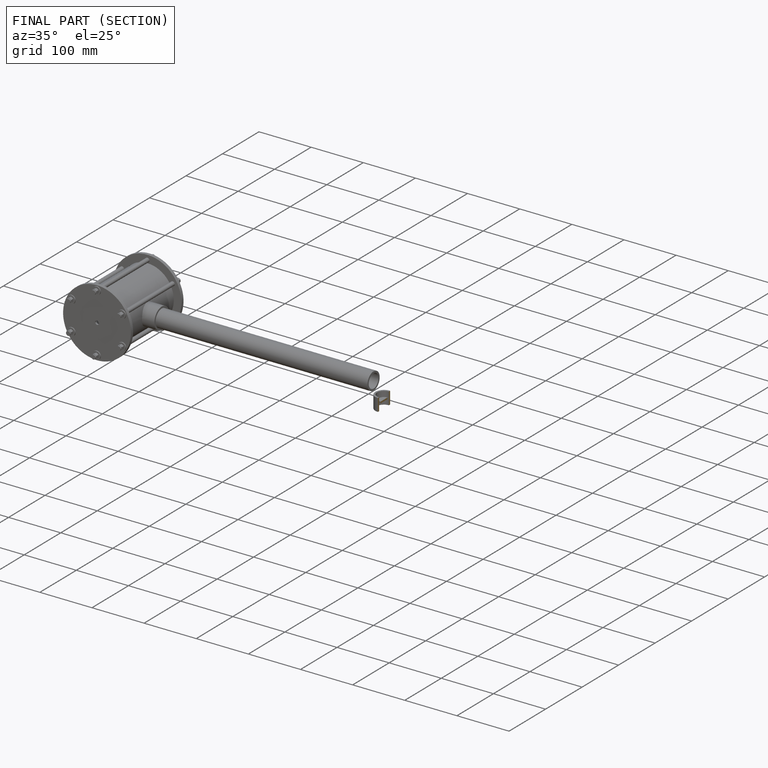
[diagram: finished part — half-section view (interior)]
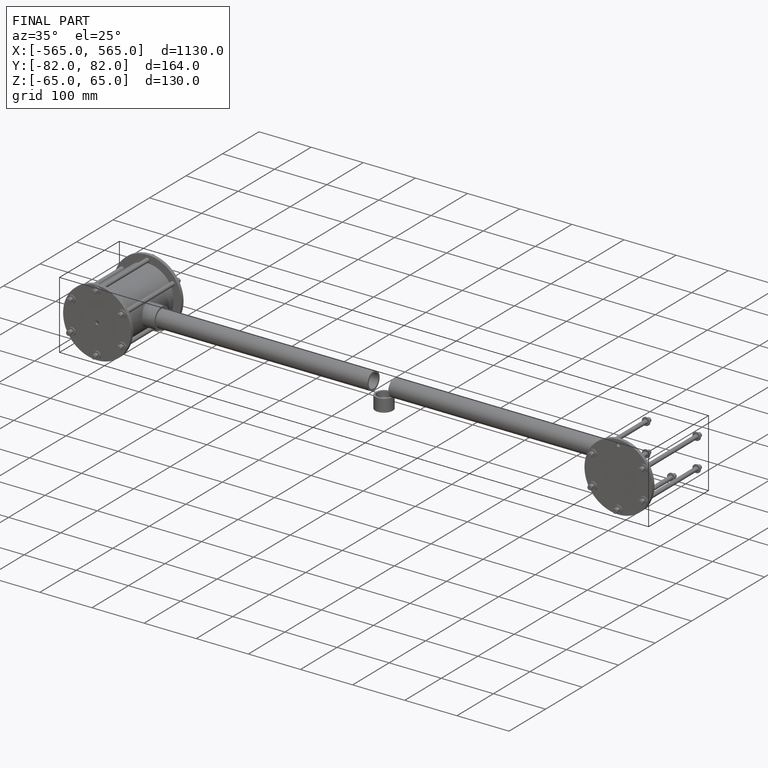
[diagram: finished part — iso view with bounding-box wireframe]
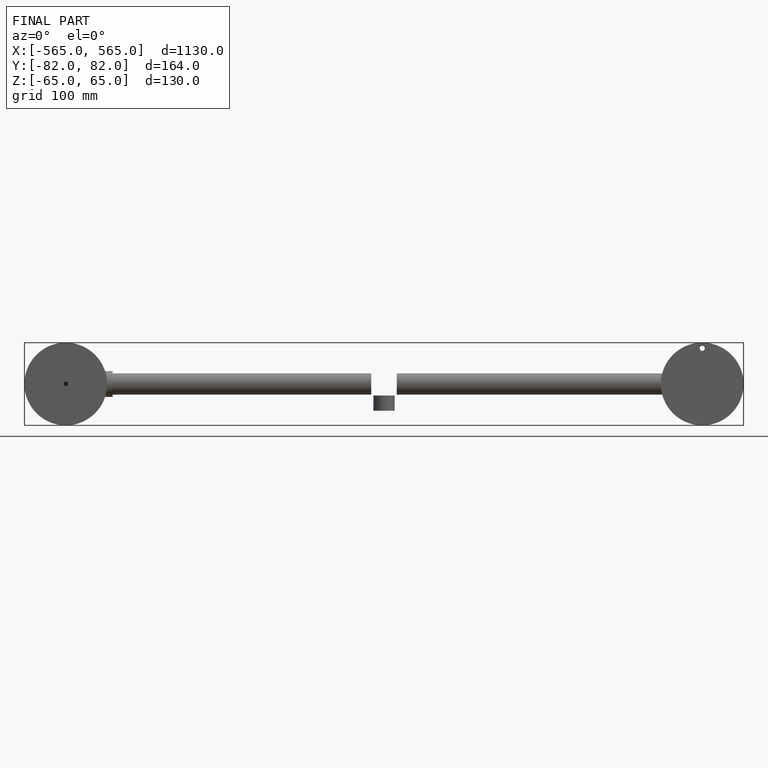
[diagram: finished part — front view with bounding-box wireframe]
